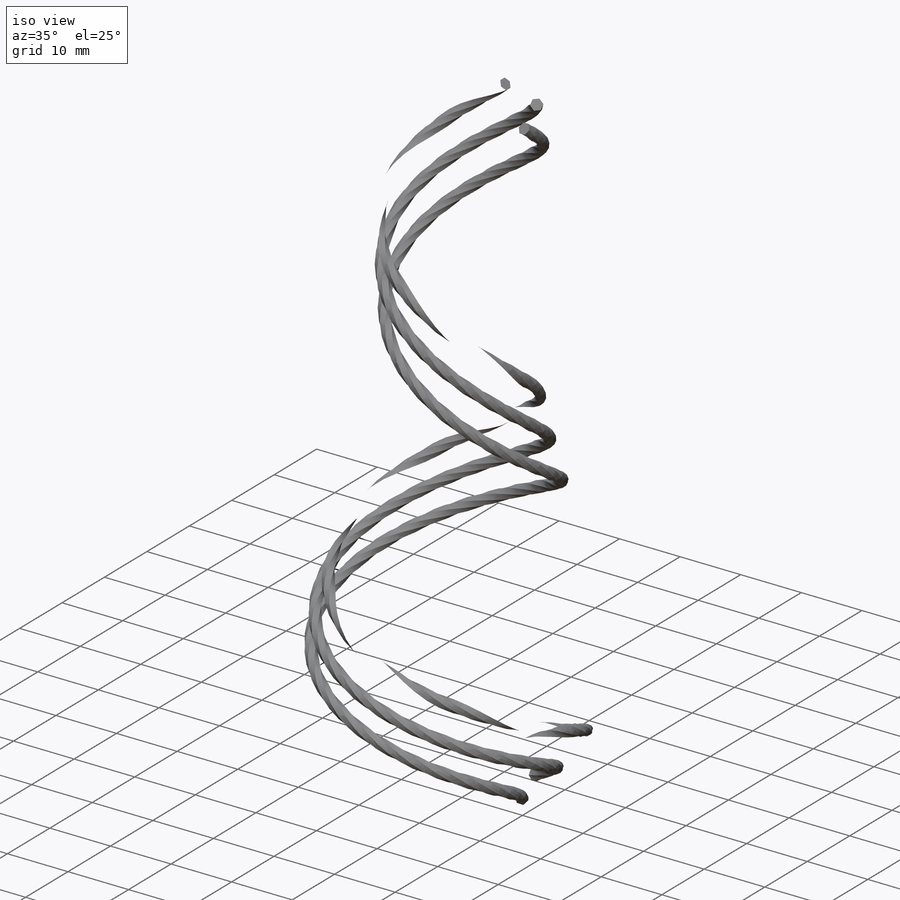
[diagram: iso view]
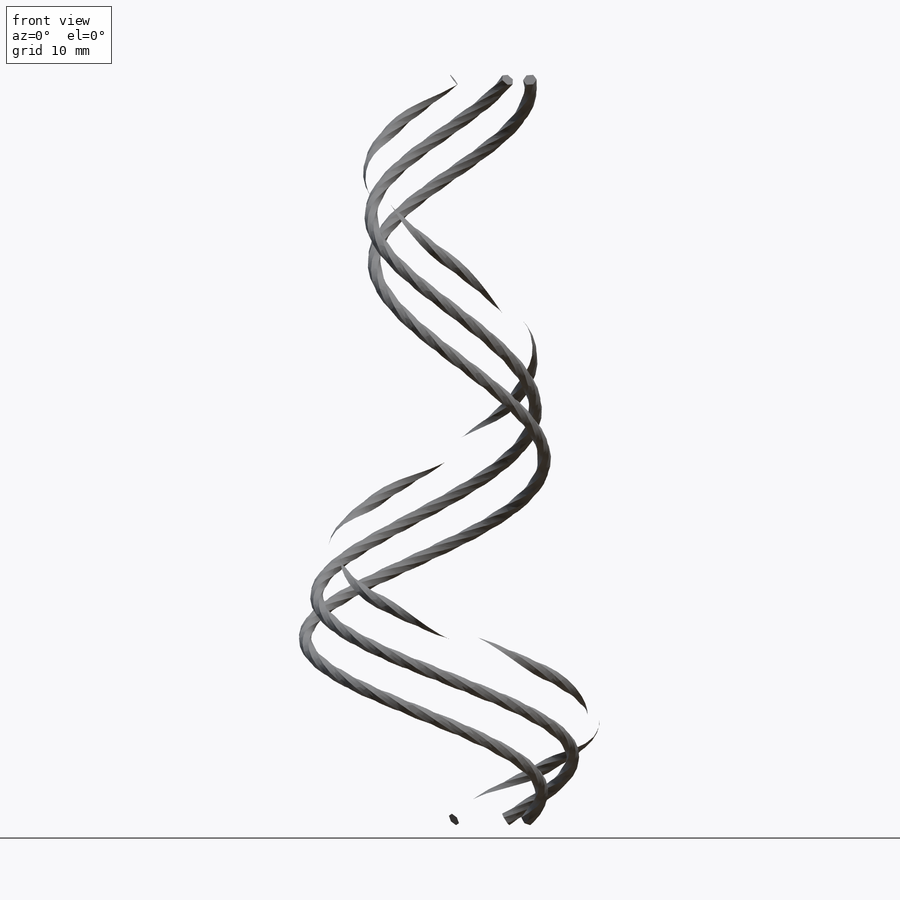
[diagram: front view]
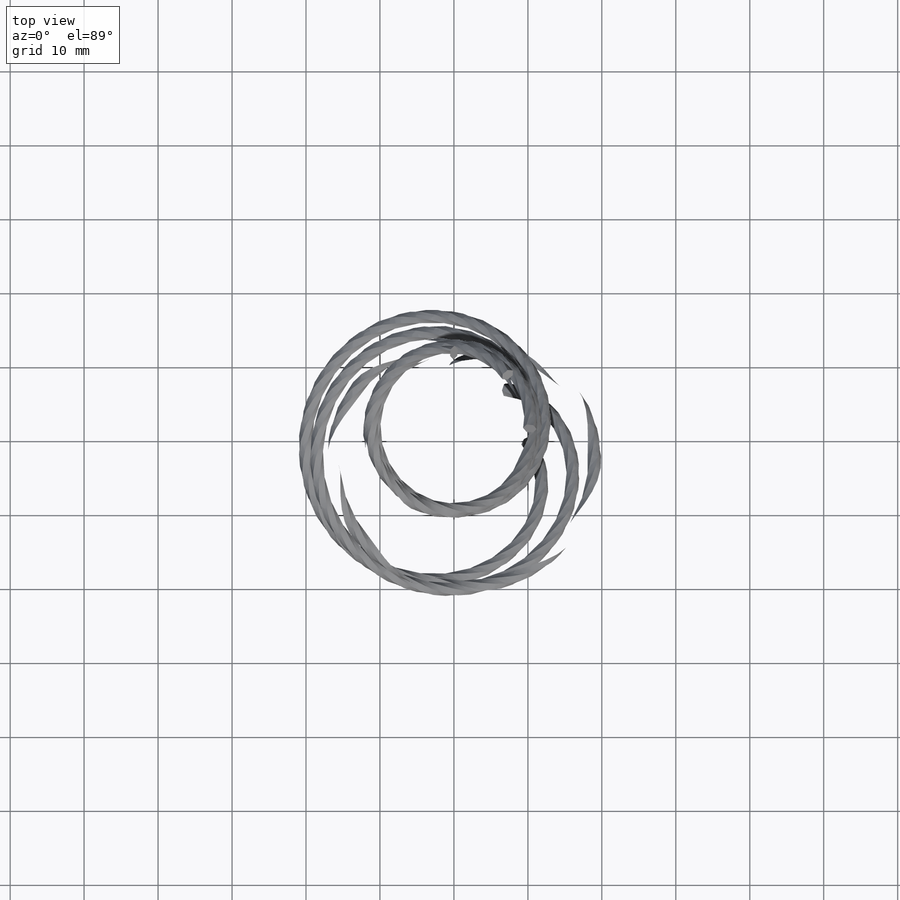
[diagram: top view]
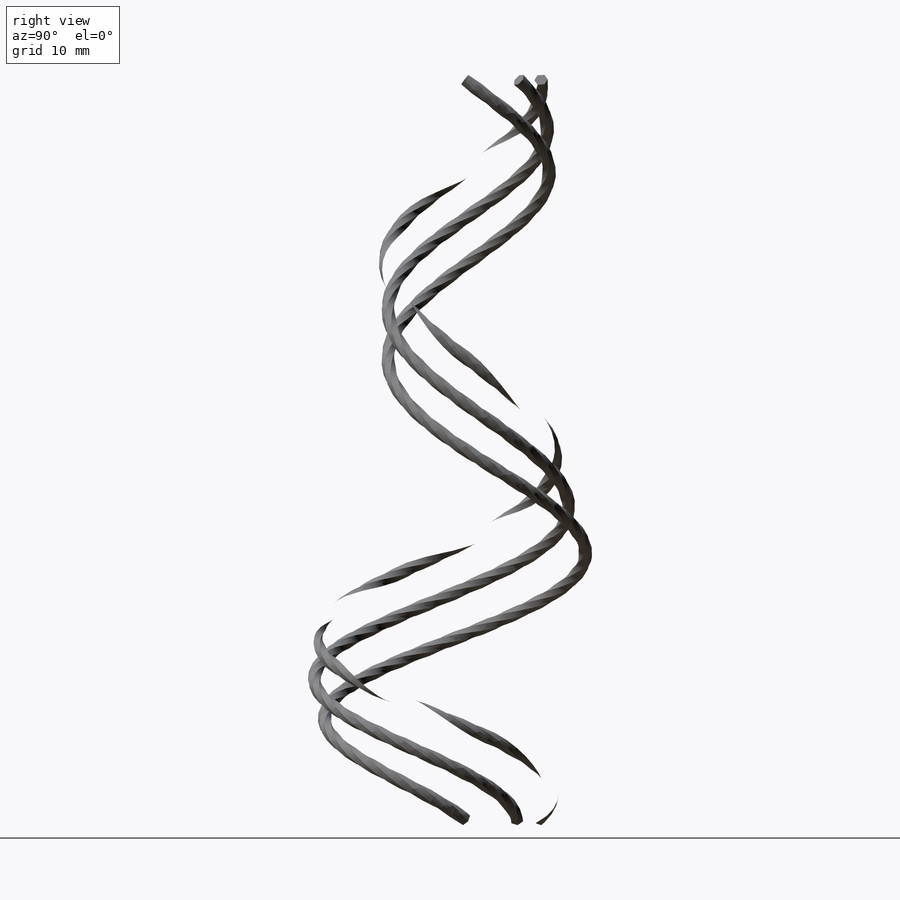
[diagram: right view]
SOLIDWORKS PART (.sldprt)
format: sldprt  version: not decoded by parser v0  size: 2,482,688 bytes
history: native  units: mm
features: sketch x6, plane x5, material x1, revolve x1, sweep x1, pattern_circular x1 (+9 scaffold rows collapsed)
feature tree (24):
  scaffold x9  (default folders/planes/origin — collapsed)
  material  "Material <nicht festgelegt>"
  plane  "Ebene vorne"
  plane  "Ebene oben"
  plane  "Ebene rechts"
  sketch  "Skizze1"  dims[D1=100.0mm]
  revolve  "Rotation1"  Angle=360deg
  sketch  "Skizze3"  dims[D1=100.0mm]
  sketch  "Skizze4"  dims[D1=720.0deg]
  plane  "Ebene1"
  sketch  "3D-Skizze4"
  plane  "Ebene4"
  sketch  "Skizze8"
  sweep  "Austragung2"
  sketch  "Skizze9"
  pattern_circular  "Kreismuster1"  Count=8 Angle=360deg
decode coverage: 5 of 9 modeling features carry decoded parameters
note: suppression state not decoded; provenance and decode notes live in map.json
